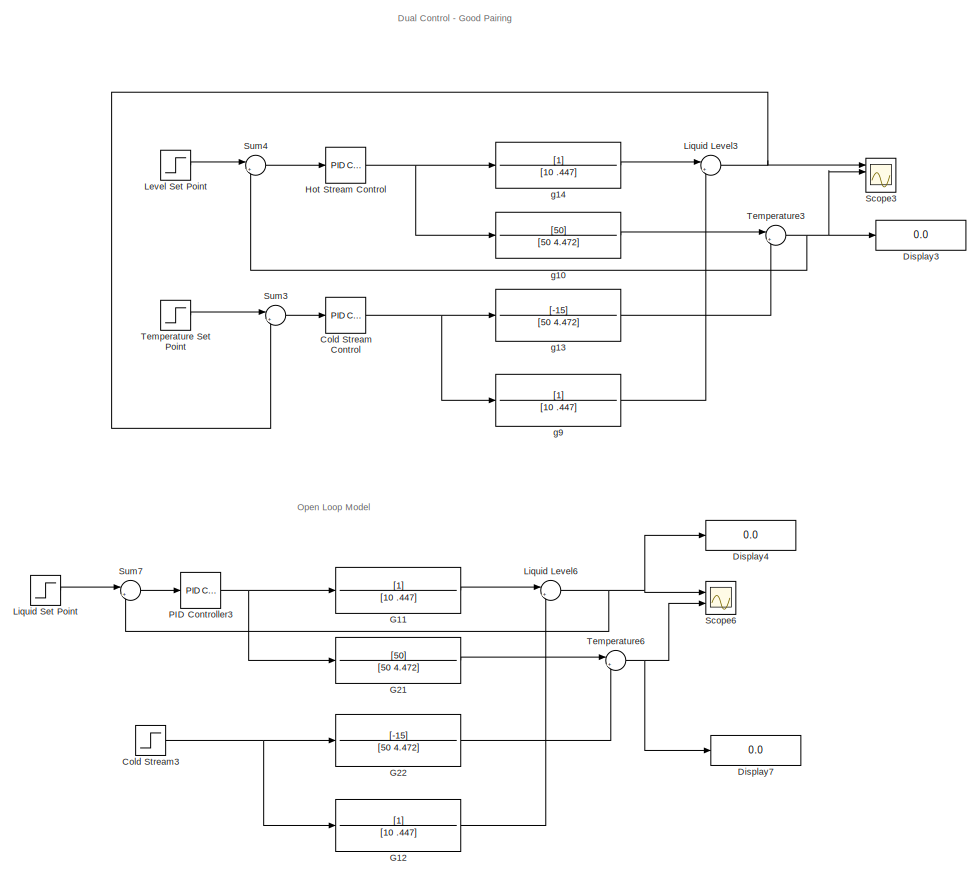
[diagram: root canvas - part 1/2, left side, full height]
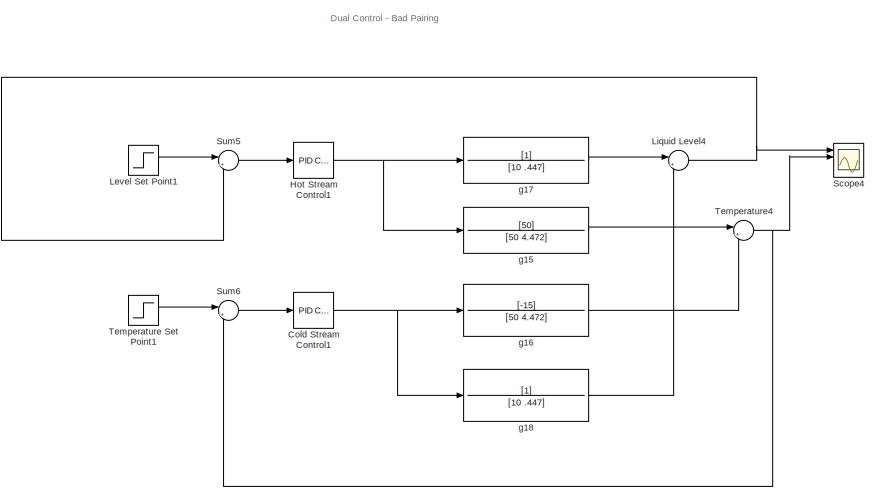
[diagram: root canvas - part 2/2, top right region]
MODEL slx_e2c628bea6e2
KIND model
CONFIG AbsTol = auto
CONFIG EnableMultiTasking = off
CONFIG FixedStep = auto
CONFIG MaxStep = auto
CONFIG MinStep = auto
CONFIG RelTol = 1e-3
CONFIG SampleTimeConstraint = Unconstrained
CONFIG SolverName = VariableStepAuto
CONFIG StartTime = 0.0
CONFIG StopTime = 100
BLOCK [Reference] Cold Stream Control  REF=pid_lib/PID Controller
  Ports = [1, 1]
  SourceBlock = pid_lib/PID Controller
  SourceProductBaseCode = SL
  SourceType = PID 1dof
BLOCK [Reference] Cold Stream Control1  REF=pid_lib/PID Controller
  Ports = [1, 1]
  SourceBlock = pid_lib/PID Controller
  SourceProductBaseCode = SL
  SourceType = PID 1dof
BLOCK [Step] Cold Stream3
  After = 0
  SampleTime = 0
BLOCK [Display] Display3
  Decimation = 1
  Ports = [1]
BLOCK [Display] Display4
  Decimation = 1
  Ports = [1]
BLOCK [Display] Display7
  Decimation = 1
  Ports = [1]
BLOCK [TransferFcn] G11
  Denominator = [10 .447]
BLOCK [TransferFcn] G12
  Denominator = [10 .447]
BLOCK [TransferFcn] G21
  Denominator = [50 4.472]
  Numerator = [50]
BLOCK [TransferFcn] G22
  Denominator = [50 4.472]
  Numerator = [-15]
BLOCK [Reference] Hot Stream Control  REF=pid_lib/PID Controller
  Ports = [1, 1]
  SourceBlock = pid_lib/PID Controller
  SourceProductBaseCode = SL
  SourceType = PID 1dof
BLOCK [Reference] Hot Stream Control1  REF=pid_lib/PID Controller
  Ports = [1, 1]
  SourceBlock = pid_lib/PID Controller
  SourceProductBaseCode = SL
  SourceType = PID 1dof
BLOCK [Step] Level Set Point
  After = 5
  SampleTime = 0
BLOCK [Step] Level Set Point1
  After = 5
  SampleTime = 0
BLOCK [Sum] Liquid Level3
  Inputs = |++
  NameLocation = top
  Ports = [2, 1]
BLOCK [Sum] Liquid Level4
  Inputs = |++
  NameLocation = top
  Ports = [2, 1]
BLOCK [Sum] Liquid Level6
  Inputs = |++
  NameLocation = top
  Ports = [2, 1]
BLOCK [Step] Liquid Set Point
  SampleTime = 0
BLOCK [Reference] PID Controller3  REF=pid_lib/PID Controller
  Ports = [1, 1]
  SourceBlock = pid_lib/PID Controller
  SourceProductBaseCode = SL
  SourceType = PID 1dof
BLOCK [Scope] Scope3
  Floating = off
  NumInputPorts = 4
  Ports = [4]
  ScopeSpecificationString = Simulink.scopes.TimeScopeBlockCfg('CurrentConfiguration', extmgr.ConfigurationSet(extmgr.Configuration('Core','General UI',true),extmgr.Configuration('Core','Source UI',true),extmgr.Configuration('Sources','WiredSimulink',true,'DataLoggingVariableName','ScopeData1'),extmgr.Configuration('Visuals','Time Domain',true,'SerializedDisplays',{struct('MinYLimReal','-8.5225','MaxYLimReal','24.82422','YLab...<+1534ch>
BLOCK [Scope] Scope4
  Floating = off
  NumInputPorts = 4
  Ports = [4]
  ScopeSpecificationString = Simulink.scopes.TimeScopeBlockCfg('CurrentConfiguration', extmgr.ConfigurationSet(extmgr.Configuration('Core','General UI',true),extmgr.Configuration('Core','Source UI',true),extmgr.Configuration('Sources','WiredSimulink',true,'DataLoggingVariableName','ScopeData1'),extmgr.Configuration('Visuals','Time Domain',true,'SerializedDisplays',{struct('MinYLimReal','-7.85545','MaxYLimReal','9.86622','YLab...<+1557ch>
BLOCK [Scope] Scope6
  Floating = off
  NumInputPorts = 2
  Ports = [2]
  ScopeSpecificationString = Simulink.scopes.TimeScopeBlockCfg('CurrentConfiguration', extmgr.ConfigurationSet(extmgr.Configuration('Core','General UI',true),extmgr.Configuration('Core','Source UI',true),extmgr.Configuration('Sources','WiredSimulink',true,'DataLoggingVariableName','ScopeData2'),extmgr.Configuration('Visuals','Time Domain',true,'SerializedDisplays',{struct('MinYLimReal','-1.55501','MaxYLimReal','13.99508','YLa...<+1420ch>
BLOCK [Sum] Sum3
  Inputs = |+-
  Ports = [2, 1]
BLOCK [Sum] Sum4
  Inputs = |+-
  Ports = [2, 1]
BLOCK [Sum] Sum5
  Inputs = |+-
  Ports = [2, 1]
BLOCK [Sum] Sum6
  Inputs = |+-
  Ports = [2, 1]
BLOCK [Sum] Sum7
  Inputs = |+-
  Ports = [2, 1]
BLOCK [Step] Temperature Set Point
  After = 20
  SampleTime = 0
  Time = 50
BLOCK [Step] Temperature Set Point1
  After = 0
  SampleTime = 0
  Time = 50
BLOCK [Sum] Temperature3
  Inputs = |++
  NameLocation = top
  Ports = [2, 1]
BLOCK [Sum] Temperature4
  Inputs = |++
  NameLocation = top
  Ports = [2, 1]
BLOCK [Sum] Temperature6
  Inputs = |++
  NameLocation = top
  Ports = [2, 1]
BLOCK [TransferFcn] g10
  Denominator = [50 4.472]
  Numerator = [50]
BLOCK [TransferFcn] g13
  Denominator = [50 4.472]
  Numerator = [-15]
BLOCK [TransferFcn] g14
  Denominator = [10 .447]
BLOCK [TransferFcn] g15
  Denominator = [50 4.472]
  Numerator = [50]
BLOCK [TransferFcn] g16
  Denominator = [50 4.472]
  Numerator = [-15]
BLOCK [TransferFcn] g17
  Denominator = [10 .447]
BLOCK [TransferFcn] g18
  Denominator = [10 .447]
BLOCK [TransferFcn] g9
  Denominator = [10 .447]
ANNOTATION (root): Dual Control - Bad Pairing
ANNOTATION (root): Dual Control - Good Pairing
ANNOTATION (root): Open Loop Model
NET Cold Stream Control1:1 -> g16:1, g18:1
NET Cold Stream Control:1 -> g13:1, g9:1
NET Cold Stream3:1 -> G12:1, G22:1
LINE G11:1 -> Liquid Level6:1
LINE G12:1 -> Liquid Level6:2
LINE G21:1 -> Temperature6:1
LINE G22:1 -> Temperature6:2
NET Hot Stream Control1:1 -> g15:1, g17:1
NET Hot Stream Control:1 -> g10:1, g14:1
LINE Level Set Point1:1 -> Sum5:1
LINE Level Set Point:1 -> Sum4:1
NET Liquid Level3:1 -> Scope3:1, Sum3:2
NET Liquid Level4:1 -> Scope4:1, Sum5:2
NET Liquid Level6:1 -> Display4:1, Scope6:1, Sum7:2
LINE Liquid Set Point:1 -> Sum7:1
NET PID Controller3:1 -> G11:1, G21:1
LINE Sum3:1 -> Cold Stream Control:1
LINE Sum4:1 -> Hot Stream Control:1
LINE Sum5:1 -> Hot Stream Control1:1
LINE Sum6:1 -> Cold Stream Control1:1
LINE Sum7:1 -> PID Controller3:1
LINE Temperature Set Point1:1 -> Sum6:1
LINE Temperature Set Point:1 -> Sum3:1
NET Temperature3:1 -> Display3:1, Scope3:2, Sum4:2
NET Temperature4:1 -> Scope4:2, Sum6:2
NET Temperature6:1 -> Display7:1, Scope6:2
LINE g10:1 -> Temperature3:1
LINE g13:1 -> Temperature3:2
LINE g14:1 -> Liquid Level3:1
LINE g15:1 -> Temperature4:1
LINE g16:1 -> Temperature4:2
LINE g17:1 -> Liquid Level4:1
LINE g18:1 -> Liquid Level4:2
LINE g9:1 -> Liquid Level3:2
note: NET lines group one-source signal fan-out (src -> all destinations, sorted); 1:1 wires keep LINE
